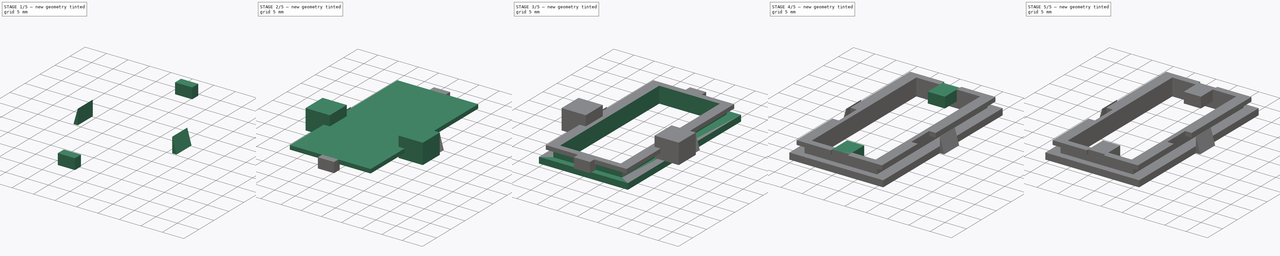
[diagram: build sequence overview — one tinted view per stage of 5, left to right]
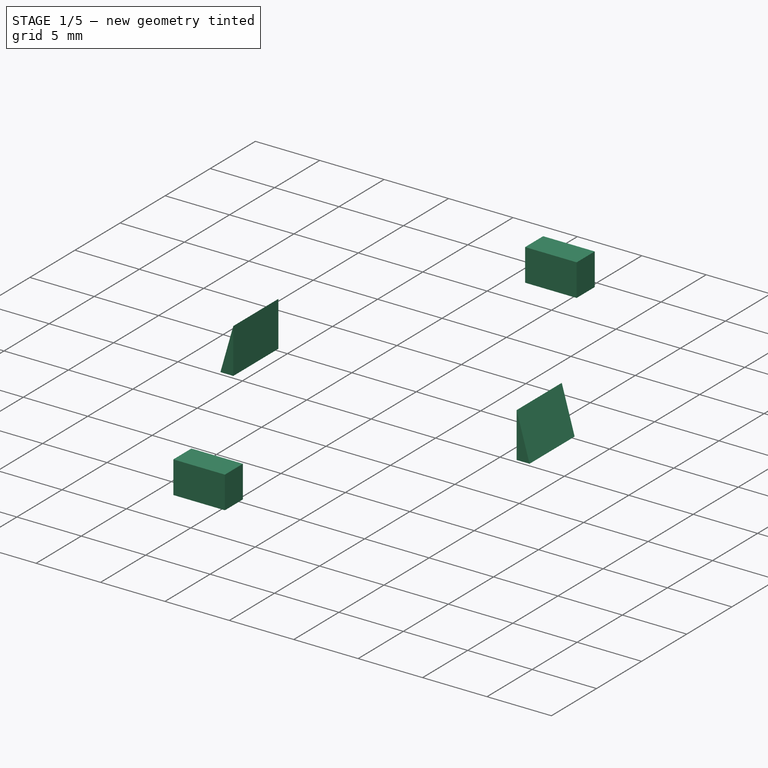
[diagram: stage 1 of 5 — iso view after this stage's code; geometry added in this stage tinted green]
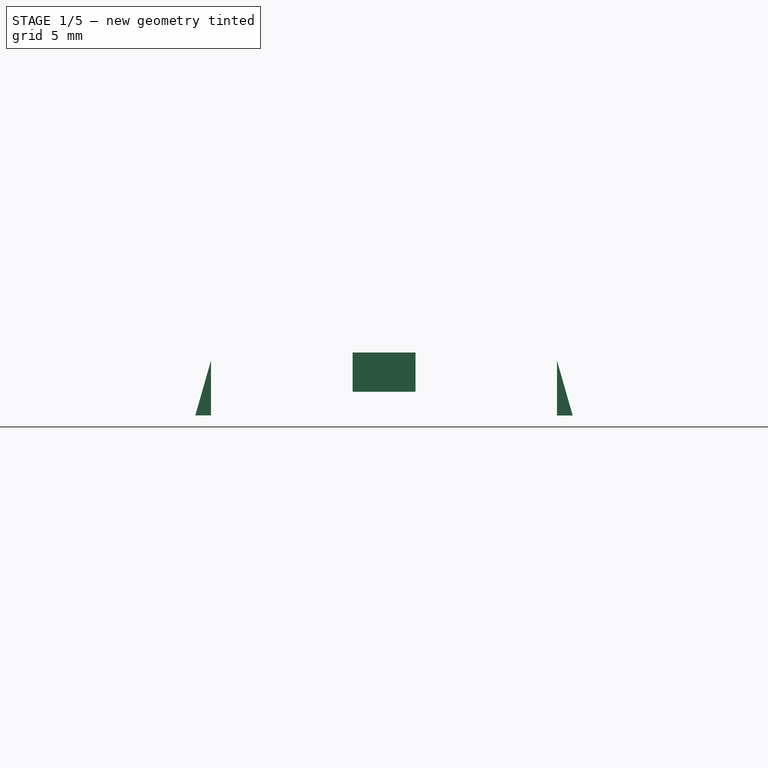
[diagram: stage 1 of 5 — front view after this stage's code; geometry added in this stage tinted green]
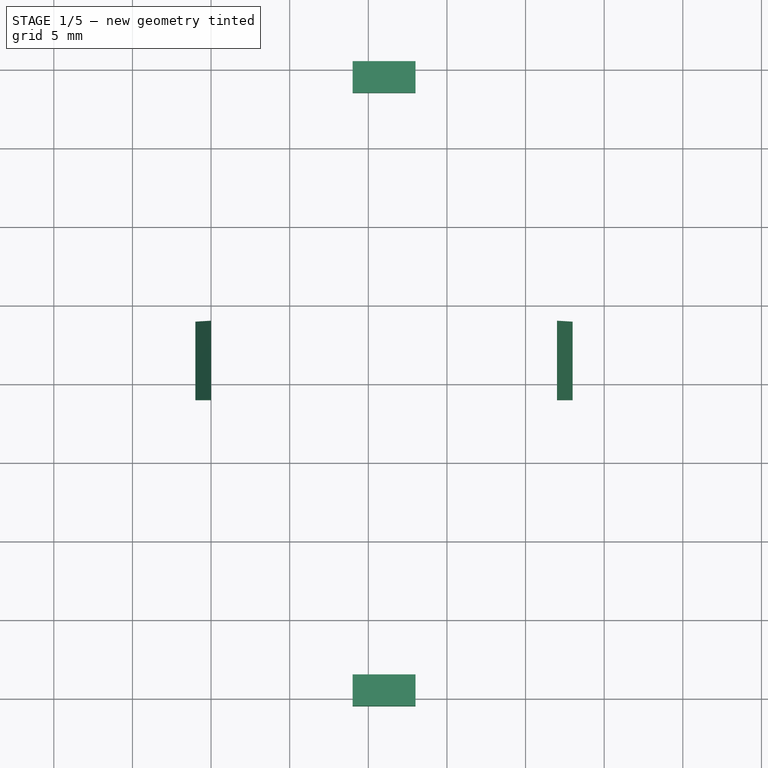
[diagram: stage 1 of 5 — top view after this stage's code; geometry added in this stage tinted green]
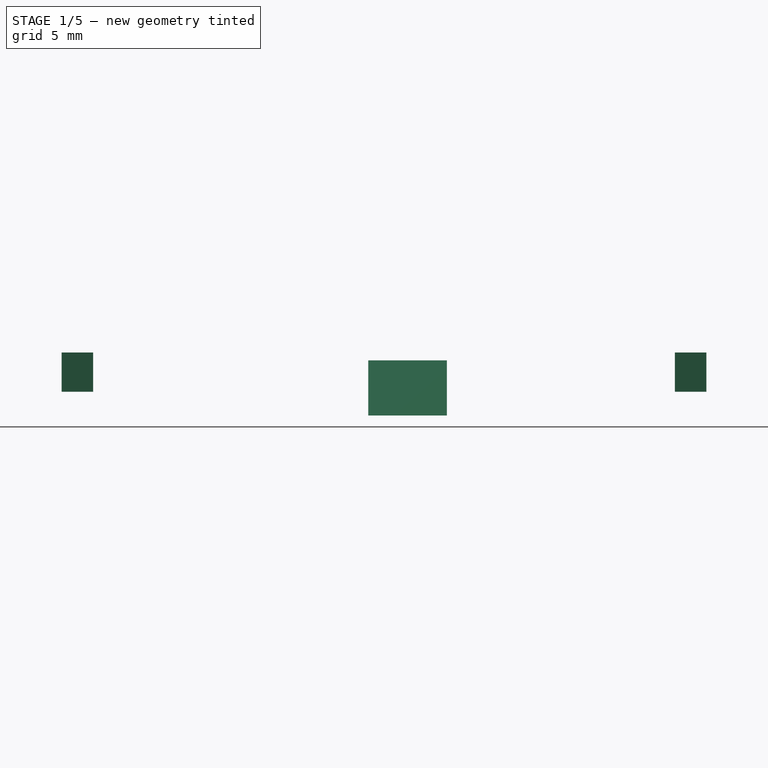
[diagram: stage 1 of 5 — right view after this stage's code; geometry added in this stage tinted green]
FCSTD DOCUMENT  (FreeCAD 0.17R13522 (Git))
Label: BaseSensorMount
License: All rights reserved
LicenseURL: http://en.wikipedia.org/wiki/All_rights_reserved
objects: Part::Box×10, Part::MultiFuse×7, Part::Cut×4, Sketcher::SketchObject×2, PartDesign::Pad×2, Part::Cylinder×2
note: 29 computed .brp shape members not serialized (recipe doc carries the construction recipe); baked Part::Feature solids carry a one-line shape summary decoded from their .brp

FEATURE [Sketcher::SketchObject] Sketch
  MapMode = 5
  Placement = pos=(0,21,0) rot=(1,0,0;1.5708rad)
  sketch-geometry (3):
    g0: LineSegment StartX=0 StartY=0 StartZ=0 EndX=0 EndY=3.5 EndZ=0
    g1: LineSegment StartX=-1 StartY=0 StartZ=0 EndX=0 EndY=0 EndZ=0
    g2: LineSegment StartX=0 StartY=3.5 StartZ=0 EndX=-1 EndY=0 EndZ=0
  constraints (7):
    c: PointOnObject(g0,g-2)
    c: Coincident(g1,g-1)
    c: Angle(g0,g1) = 1.5708
    c: Distance(g1) = 1
    c: Distance(g0) = 3.5
    c: Coincident(g2,g0)
    c: Coincident(g2,g1)
FEATURE [PartDesign::Pad] Pad
  Length = 5
  Length2 = 100
  Placement = pos=(0,21,0) rot=(1,0,0;1.5708rad)
  Profile = -> Sketch
  Type = 0
FEATURE [Sketcher::SketchObject] Sketch001
  MapMode = 5
  Placement = pos=(0,21,0) rot=(1,0,0;1.5708rad)
  sketch-geometry (3):
    g0: LineSegment StartX=21.9963 StartY=3.48817 StartZ=0 EndX=21.9963 EndY=-0.0118263 EndZ=0
    g1: LineSegment StartX=21.9963 StartY=-0.0118263 StartZ=0 EndX=22.9963 EndY=-0.0118263 EndZ=0
    g2: LineSegment StartX=22.9963 StartY=-0.0118263 StartZ=0 EndX=21.9963 EndY=3.48817 EndZ=0
  constraints (6):
    c: Vertical(g0)
    c: Coincident(g1,g0)
    c: Coincident(g2,g1)
    c: Coincident(g2,g0)
    c: Distance(g1) = 1
    c: Distance(g0) = 3.5
FEATURE [PartDesign::Pad] Pad001
  Length = 5
  Length2 = 100
  Placement = pos=(0,21,0) rot=(1,0,0;1.5708rad)
  Profile = -> Sketch001
  Type = 0
FEATURE [Part::Box] Box010  label="remove"
  AttacherType = Attacher::AttachEngine3D
  Height = 2.5
  Length = 4
  Placement = pos=(9,-0.5,1.5) rot=(0,0,1;0rad)
  Width = 2
FEATURE [Part::Box] Box011  label="remove001"
  AttacherType = Attacher::AttachEngine3D
  Height = 2.5
  Length = 4
  Placement = pos=(9,38.5,1.5) rot=(0,0,1;0rad)
  Width = 2
FEATURE [Part::MultiFuse] Fusion005  label="slide control"
  Placement = pos=(0,3,0) rot=(0,0,1;0rad)
  Shapes = -> [Pad001,Pad]
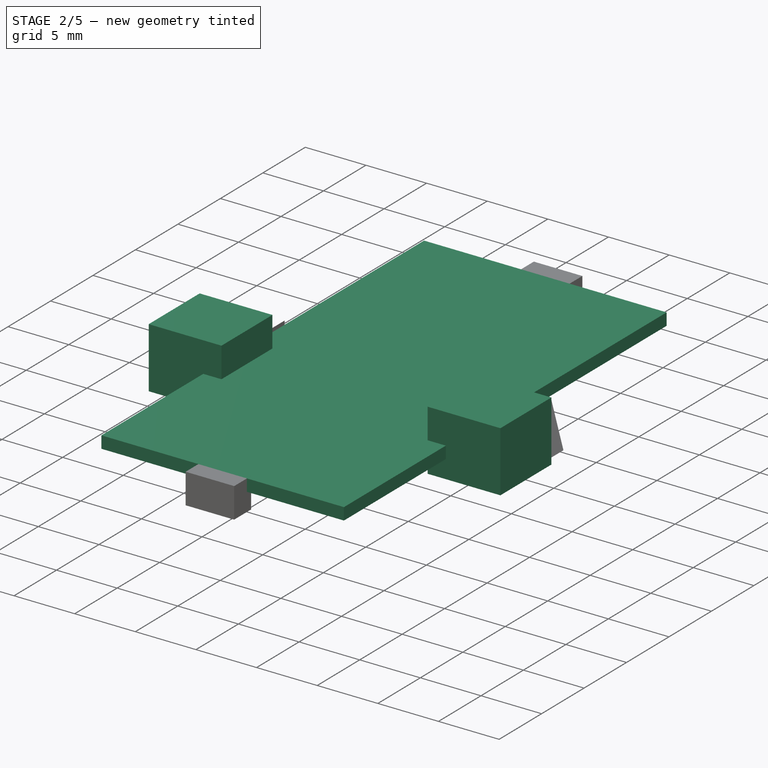
[diagram: stage 2 of 5 — iso view after this stage's code; geometry added in this stage tinted green]
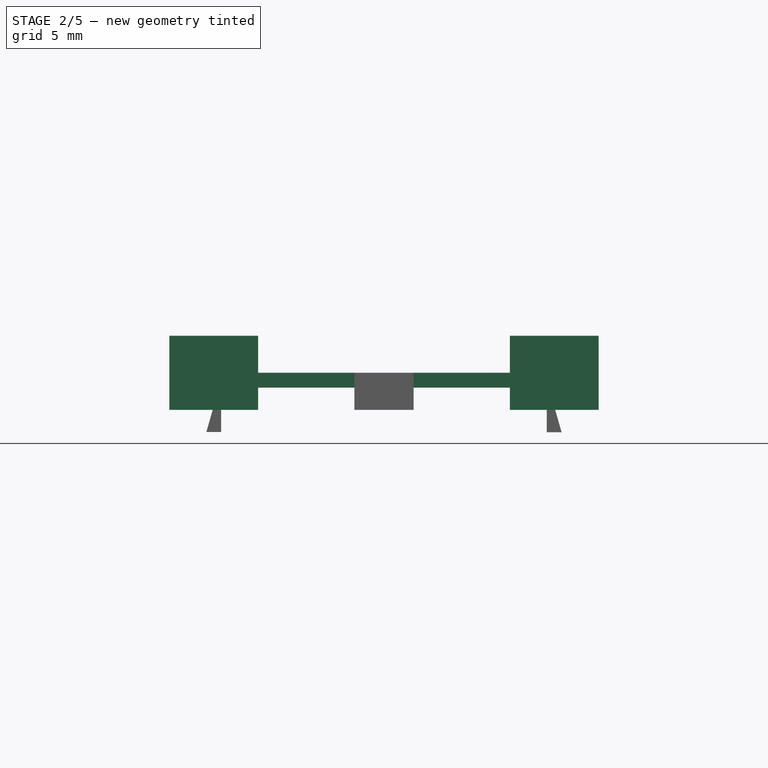
[diagram: stage 2 of 5 — front view after this stage's code; geometry added in this stage tinted green]
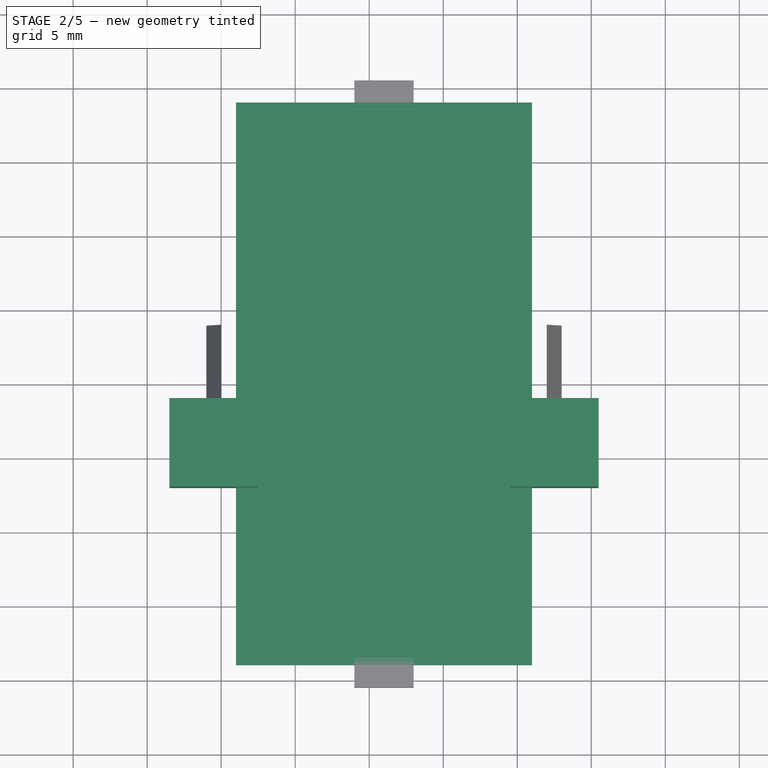
[diagram: stage 2 of 5 — top view after this stage's code; geometry added in this stage tinted green]
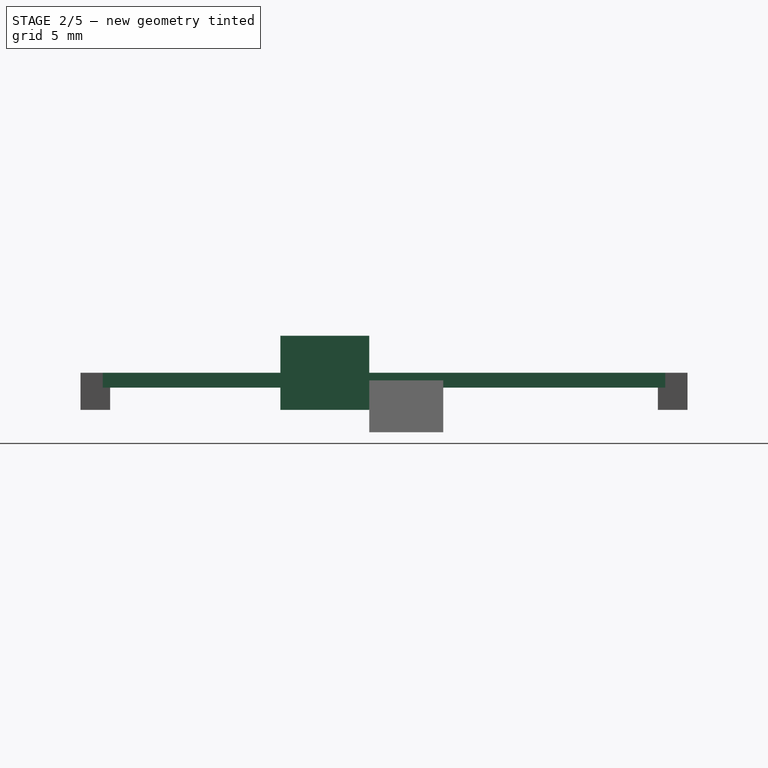
[diagram: stage 2 of 5 — right view after this stage's code; geometry added in this stage tinted green]
FEATURE [Part::Box] Box005  label="track_outer"
  AttacherType = Attacher::AttachEngine3D
  Height = 1
  Length = 20
  Placement = pos=(1,1,3) rot=(0,0,1;0rad)
  Width = 38
FEATURE [Part::Box] Box006  label="space"
  AttacherType = Attacher::AttachEngine3D
  Height = 5
  Length = 6
  Placement = pos=(-3.5,13,1.5) rot=(0,0,1;0rad)
  Width = 6
FEATURE [Part::Box] Box007  label="space001"
  AttacherType = Attacher::AttachEngine3D
  Height = 5
  Length = 6
  Placement = pos=(19.5,13,1.5) rot=(0,0,1;0rad)
  Width = 6
FEATURE [Part::MultiFuse] Fusion001
  Shapes = -> [Box006,Box007]
FEATURE [Part::MultiFuse] Fusion004
  Shapes = -> [Box011,Box010]
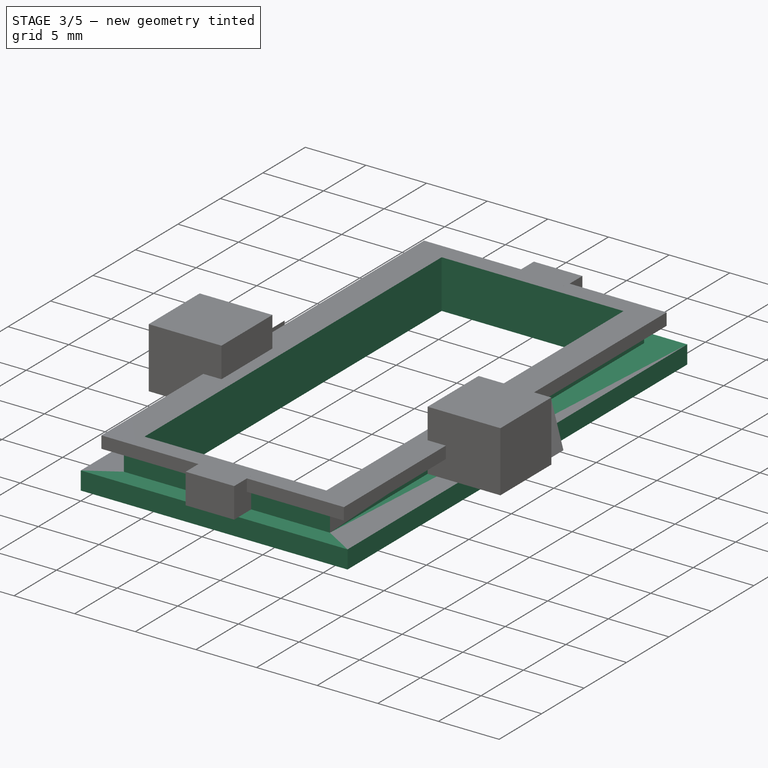
[diagram: stage 3 of 5 — iso view after this stage's code; geometry added in this stage tinted green]
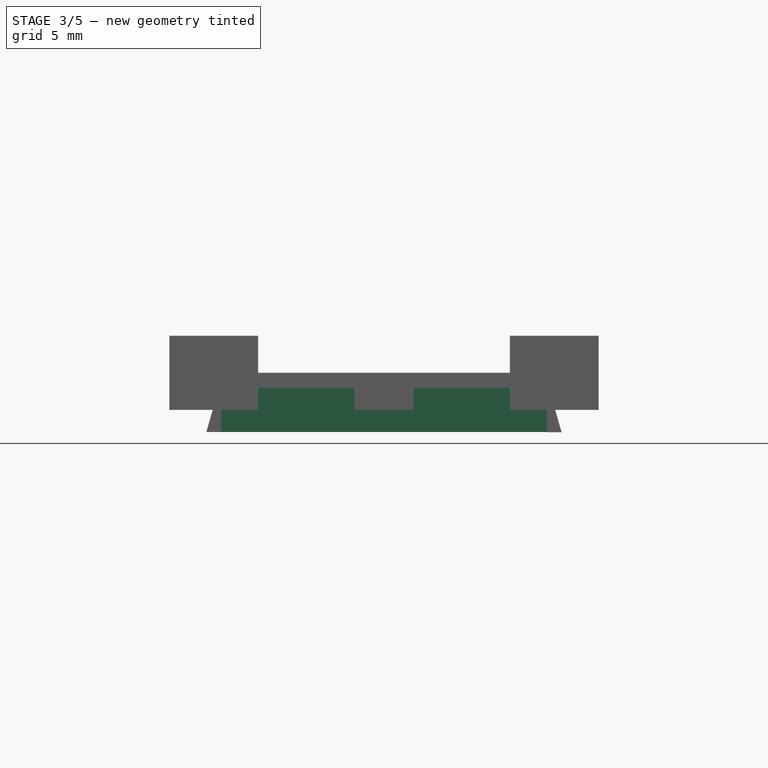
[diagram: stage 3 of 5 — front view after this stage's code; geometry added in this stage tinted green]
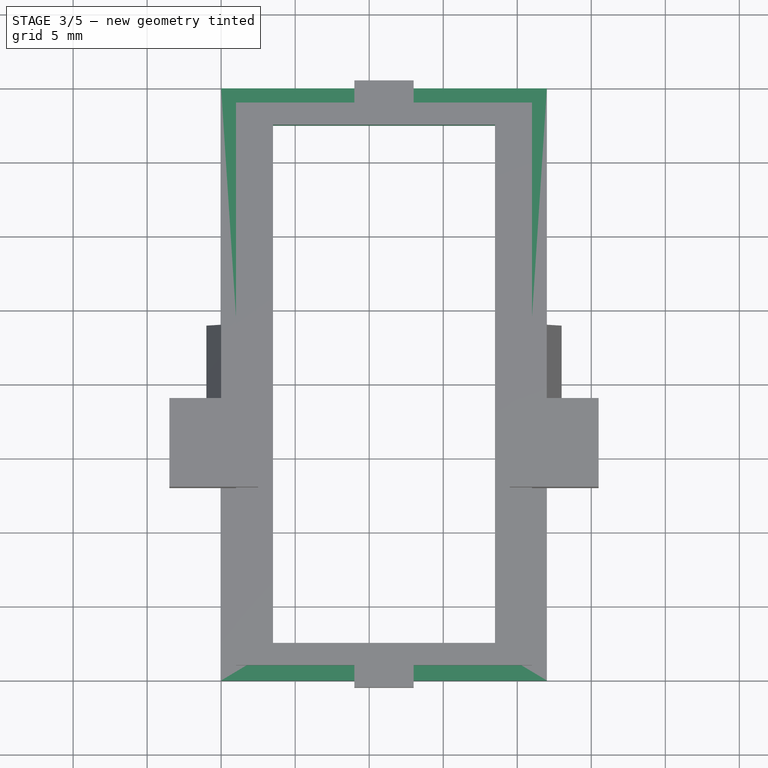
[diagram: stage 3 of 5 — top view after this stage's code; geometry added in this stage tinted green]
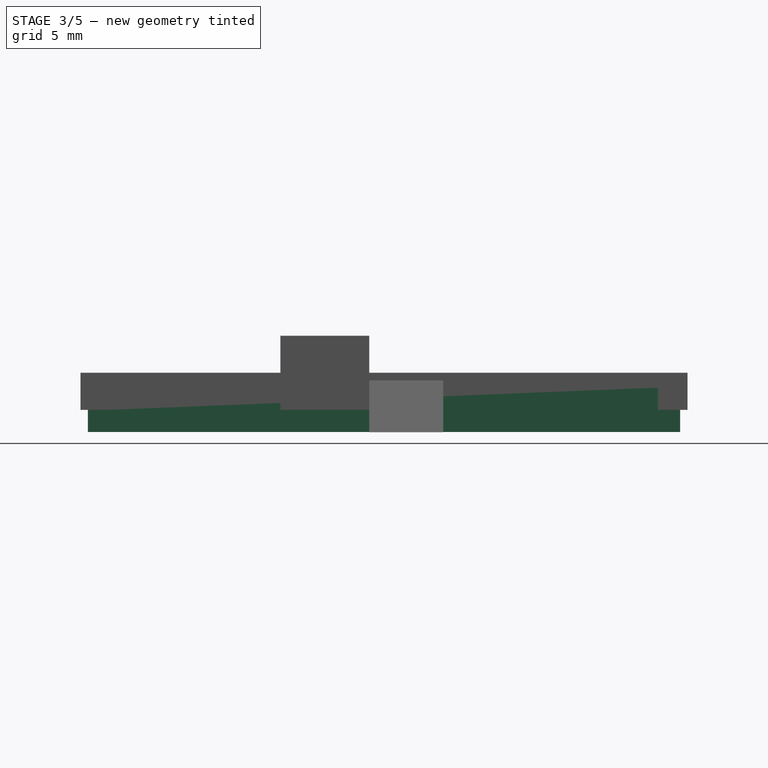
[diagram: stage 3 of 5 — right view after this stage's code; geometry added in this stage tinted green]
FEATURE [Part::Box] Box001  label="inner space"
  AttacherType = Attacher::AttachEngine3D
  Height = 10
  Length = 15
  Placement = pos=(3.5,2.5,0) rot=(0,0,1;0rad)
  Width = 35
FEATURE [Part::Box] Box  label="outer base"
  AttacherType = Attacher::AttachEngine3D
  Height = 1.5
  Length = 22
  Width = 40
FEATURE [Part::Box] Box004  label="track_inner"
  AttacherType = Attacher::AttachEngine3D
  Height = 2.5
  Length = 17
  Placement = pos=(2.5,1.5,1.5) rot=(0,0,1;0rad)
  Width = 37
FEATURE [Part::MultiFuse] Fusion
  Shapes = -> [Box,Box004,Box005]
FEATURE [Part::Cut] Cut
  Base = -> Fusion
  Tool = -> Box001
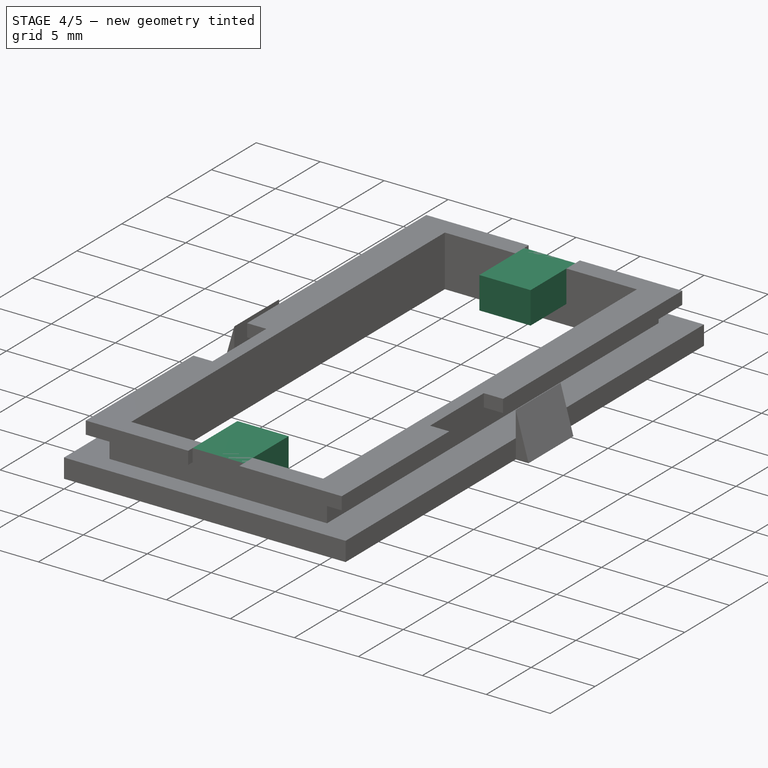
[diagram: stage 4 of 5 — iso view after this stage's code; geometry added in this stage tinted green]
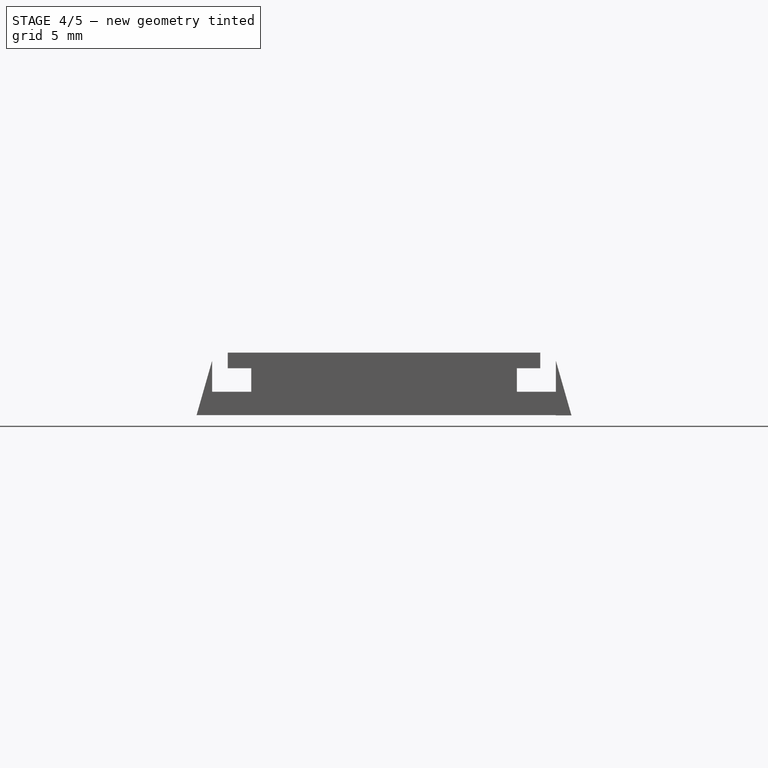
[diagram: stage 4 of 5 — front view after this stage's code; geometry added in this stage tinted green]
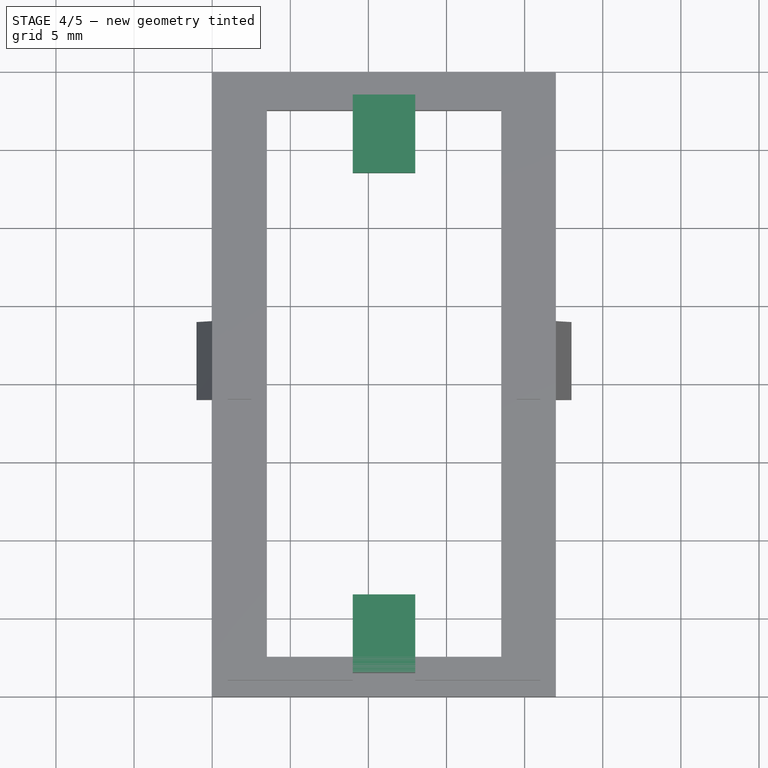
[diagram: stage 4 of 5 — top view after this stage's code; geometry added in this stage tinted green]
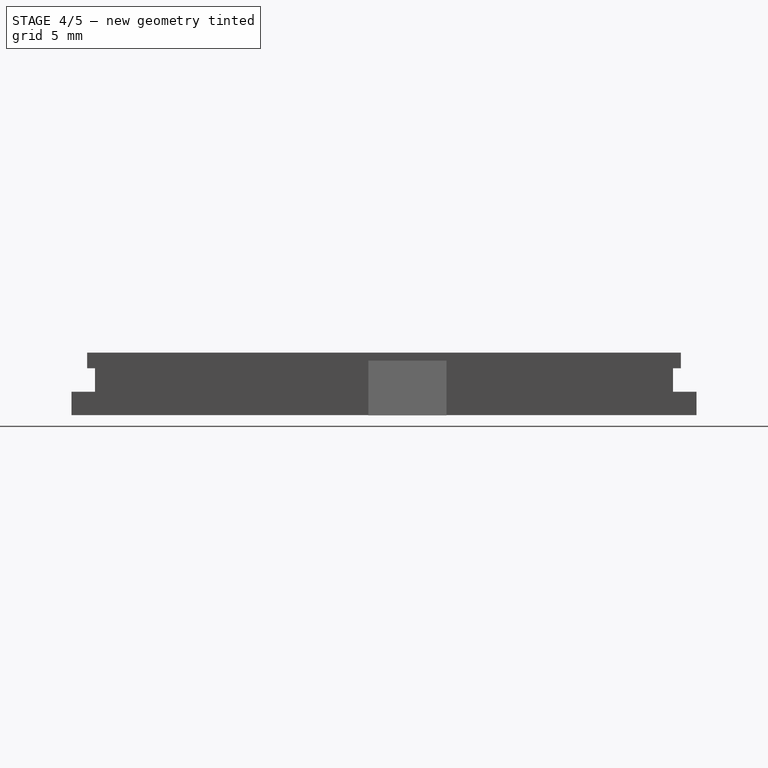
[diagram: stage 4 of 5 — right view after this stage's code; geometry added in this stage tinted green]
FEATURE [Part::Cut] Cut001
  Base = -> Cut
  Tool = -> Fusion001
FEATURE [Part::Box] Box008  label="screw block1"
  AttacherType = Attacher::AttachEngine3D
  Height = 2.5
  Length = 4
  Placement = pos=(9,1.5,1.5) rot=(0,0,1;0rad)
  Width = 5
FEATURE [Part::Box] Box009  label="screw block2"
  AttacherType = Attacher::AttachEngine3D
  Height = 2.5
  Length = 4
  Placement = pos=(9,33.5,1.5) rot=(0,0,1;0rad)
  Width = 5
FEATURE [Part::MultiFuse] Fusion002  label="screw blocks"
  Shapes = -> [Box009,Box008]
FEATURE [Part::Cut] Cut002
  Base = -> Cut001
  Tool = -> Fusion004
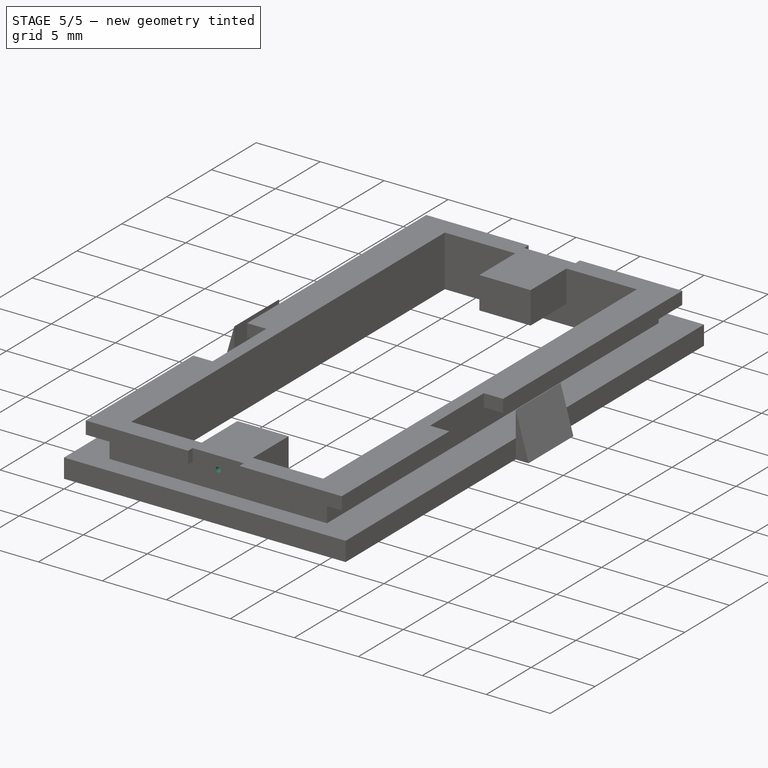
[diagram: stage 5 of 5 — iso view after this stage's code; geometry added in this stage tinted green]
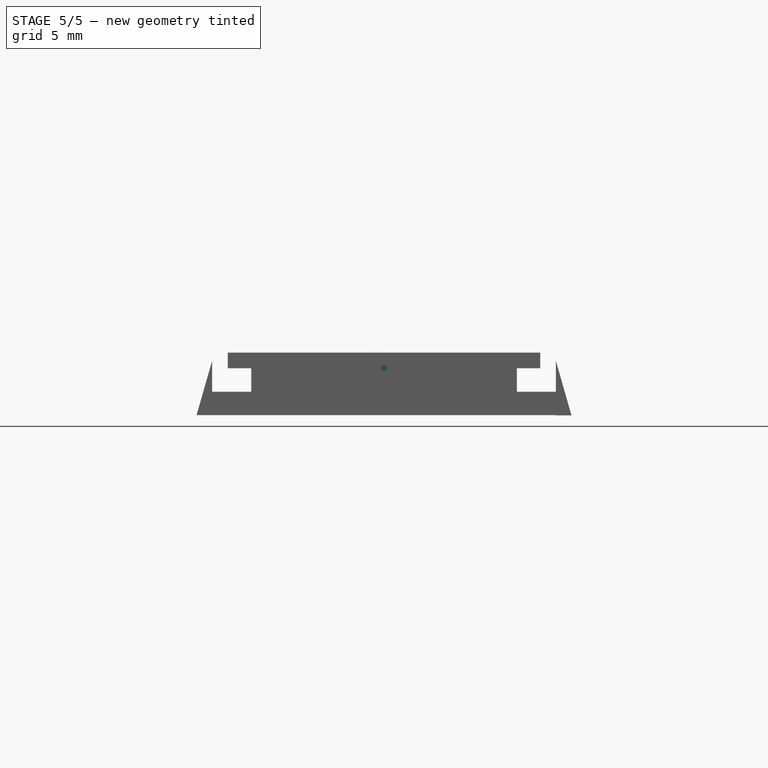
[diagram: stage 5 of 5 — front view after this stage's code; geometry added in this stage tinted green]
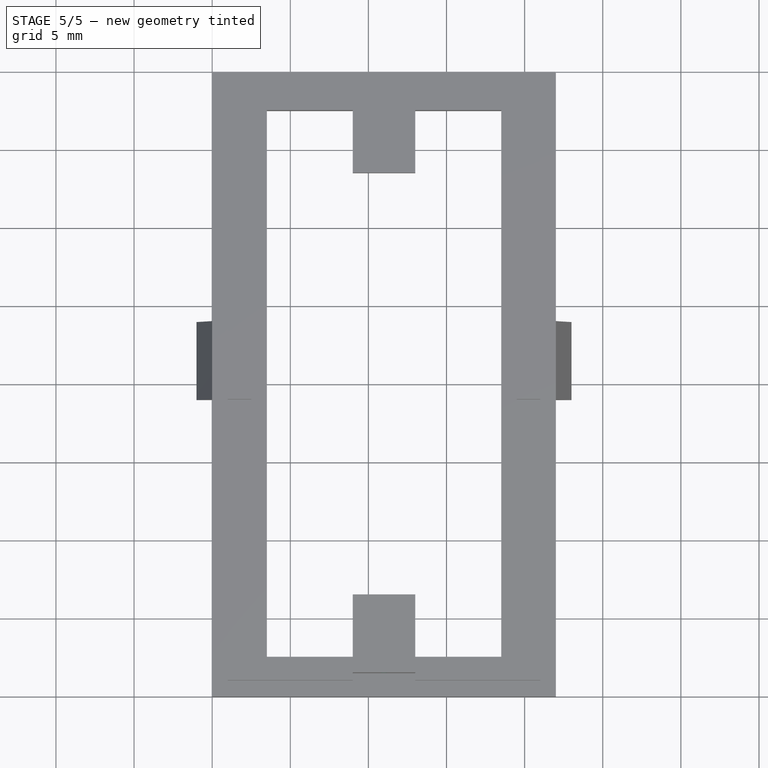
[diagram: stage 5 of 5 — top view after this stage's code; geometry added in this stage tinted green]
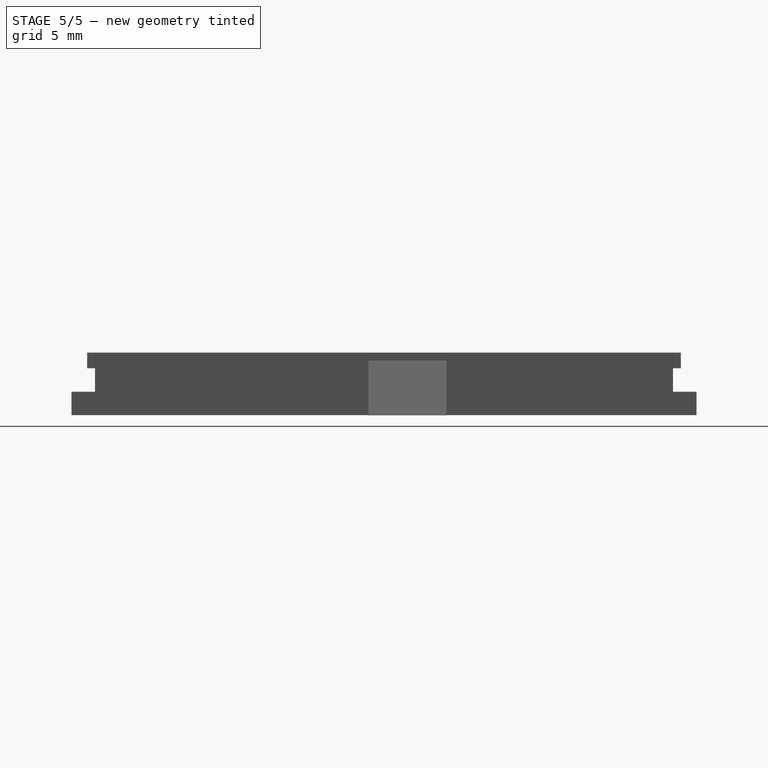
[diagram: stage 5 of 5 — right view after this stage's code; geometry added in this stage tinted green]
FEATURE [Part::Cylinder] Cylinder  label="M3 hole1"
  Angle = 360
  AttacherType = Attacher::AttachEngine3D
  Height = 4
  Placement = pos=(11,5.5,3) rot=(1,0,0;1.5708rad)
  Radius = 0.2
FEATURE [Part::Cylinder] Cylinder001  label="M3 hole2"
  Angle = 360
  AttacherType = Attacher::AttachEngine3D
  Height = 4
  Placement = pos=(11,38.5,3) rot=(1,0,0;1.5708rad)
  Radius = 0.2
FEATURE [Part::MultiFuse] Fusion003  label="screw holes"
  Shapes = -> [Cylinder001,Cylinder]
FEATURE [Part::MultiFuse] Fusion006
  Shapes = -> [Fusion002,Cut002,Fusion005]
FEATURE [Part::Cut] Cut003  label="BaseSensorMount"
  Base = -> Fusion006
  Tool = -> Fusion003
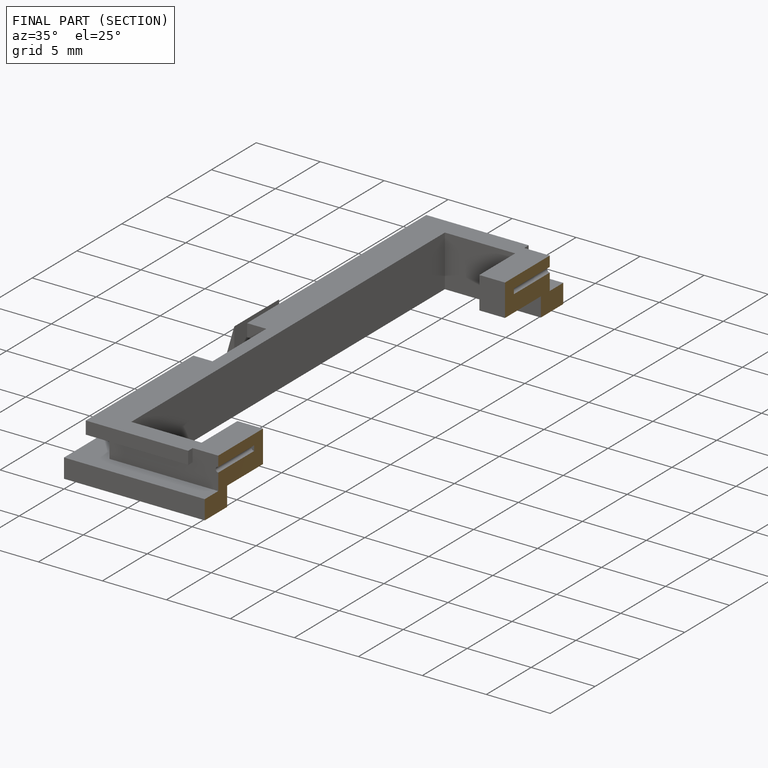
[diagram: finished part — half-section view (interior)]
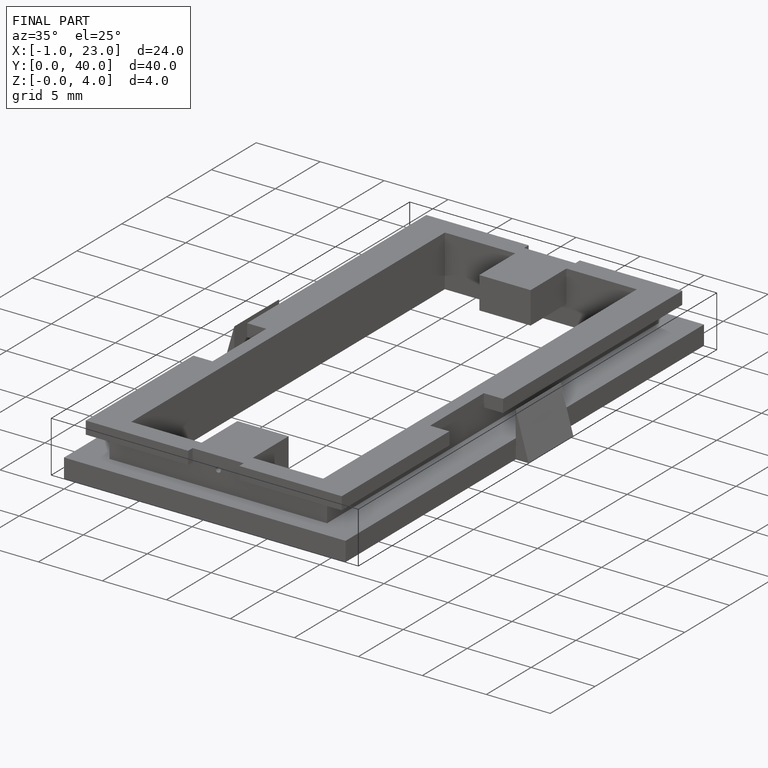
[diagram: finished part — iso view with bounding-box wireframe]
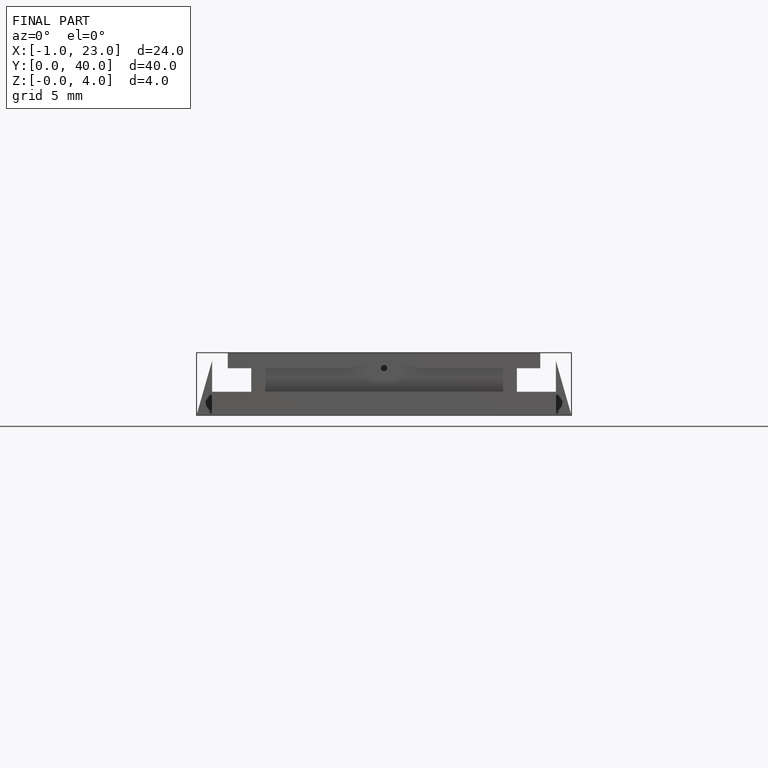
[diagram: finished part — front view with bounding-box wireframe]
